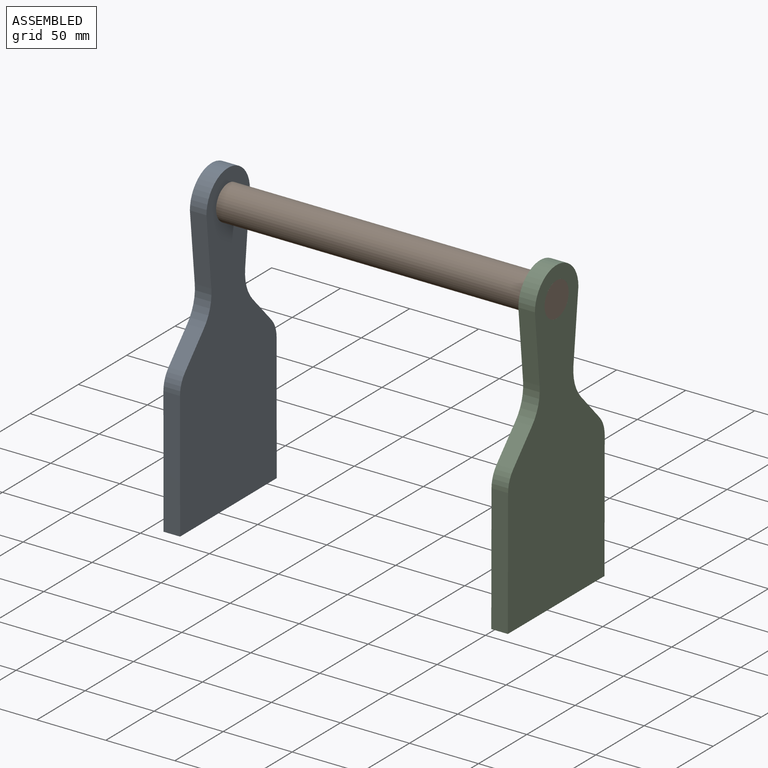
[diagram: assembled view]
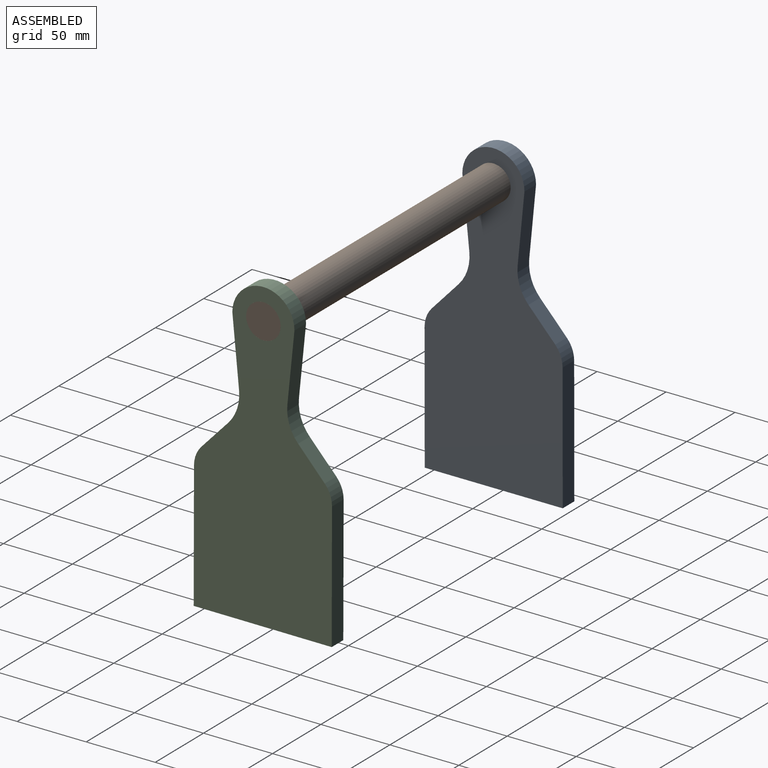
[diagram: assembled view, second angle]
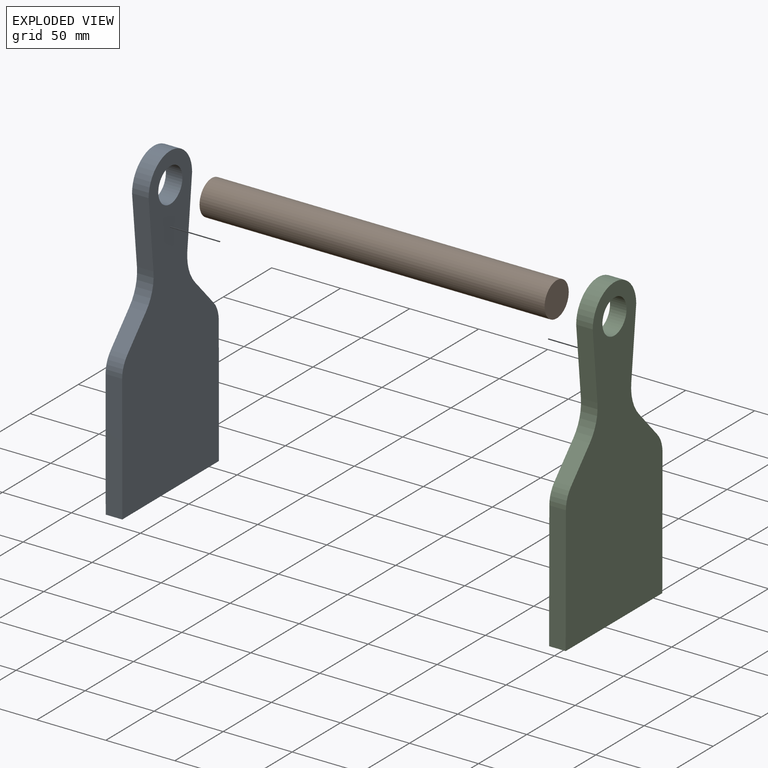
[diagram: exploded view]
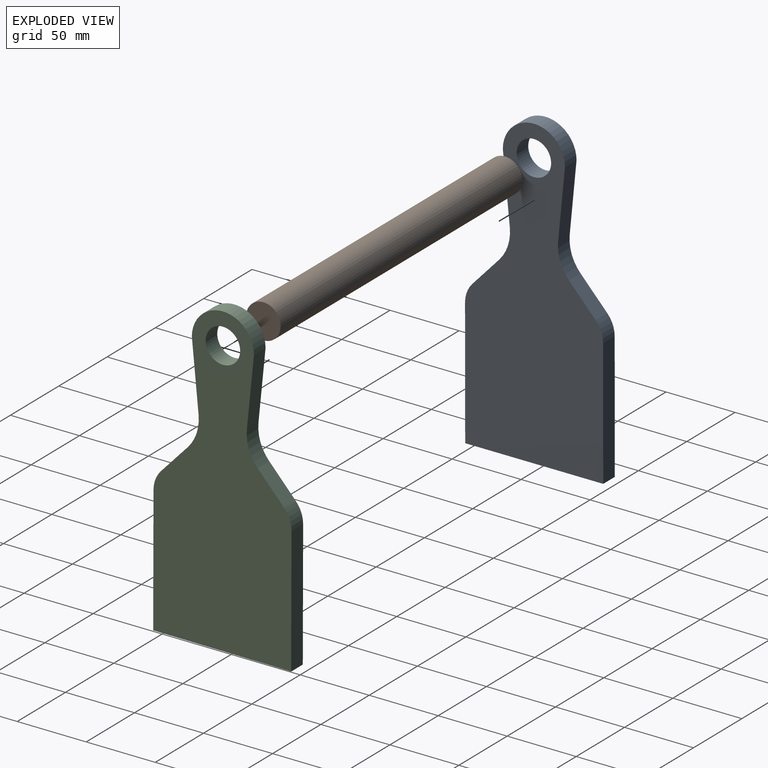
[diagram: exploded view, second angle]
ASSEMBLY  parts=3 mates=3
PART A: 15 faces, bbox 12x100x222.5 mm
  f0: plane 50x12mm, normal (0,1,-0.1), area 603mm2, adj f1,f11,f13,f14
  f1: cylinder r=22.5mm len=45mm, axis (-1,0,0), area 848.2mm2, adj f0,f2,f13,f14
  f2: plane 50x12mm, normal (0,-1,-0.1), area 603mm2, adj f1,f3,f13,f14
  f3: cylinder r=30mm len=23.37mm, axis (-1,0,0), area 304.8mm2, adj f2,f4,f13,f14
  f4: plane 20.88x19.34mm, normal (0,-0.73,0.68), area 341.5mm2, adj f3,f5,f13,f14
  f5: cylinder r=20mm len=13.59mm, axis (-1,0,0), area 179.3mm2, adj f4,f6,f13,f14
  f6: plane 92.16x12mm, normal (0,-1,0), area 1105.9mm2, adj f5,f7,f13,f14
  f7: plane 100x12mm, normal (0,0,-1), area 1200mm2, adj f6,f8,f13,f14
  f8: plane 92.16x12mm, normal (0,1,0), area 1105.9mm2, adj f7,f9,f13,f14
  f9: cylinder r=20mm len=13.59mm, axis (-1,0,0), area 179.3mm2, adj f8,f10,f13,f14
  f10: plane 20.88x19.34mm, normal (0,0.73,0.68), area 341.5mm2, adj f9,f11,f13,f14
  f11: cylinder r=30mm len=23.37mm, axis (-1,0,0), area 304.8mm2, adj f0,f10,f13,f14
  f12: cylinder r=12.5mm len=25mm, axis (-1,0,0), area 942.5mm2, adj f13,f14
  f13: plane 222.5x100mm, normal (1,0,0), area 15209.3mm2, adj f0,f1,f2,f3,f4,f5,f6,f7
  f14: plane 222.5x100mm, normal (-1,0,0), area 15209.3mm2, adj f0,f1,f2,f3,f4,f5,f6,f7
PART B: 3 faces, bbox 250x25x25 mm
  f0: cylinder r=12.5mm len=250mm, axis (-1,0,0), area 19635mm2, adj f1,f2
  f1: plane 25x25mm, normal (1,0,0), area 490.9mm2, adj f0
  f2: plane 25x25mm, normal (-1,0,0), area 490.9mm2, adj f0
PART C: same geometry as A
PLACE A rot(axis=(1,0,0),0.1deg) t=(66.61,0,0)mm
PLACE B rot(axis=(1,0,0),30.2deg) t=(66.61,0,0)mm
PLACE C rot(axis=(-1,0,0),0.1deg) t=(304.61,0,0)mm
MATE cylindrical B.f0 <-> C.f12  axis (-1,0,0) through (316.61,0,0)mm
MATE cylindrical B.f0 <-> A.f12  axis (-1,0,0) through (66.61,0,0)mm
MATE planar B.f0 <-> A.f12  axis (-1,0,0) through (66.61,0,0)mm
